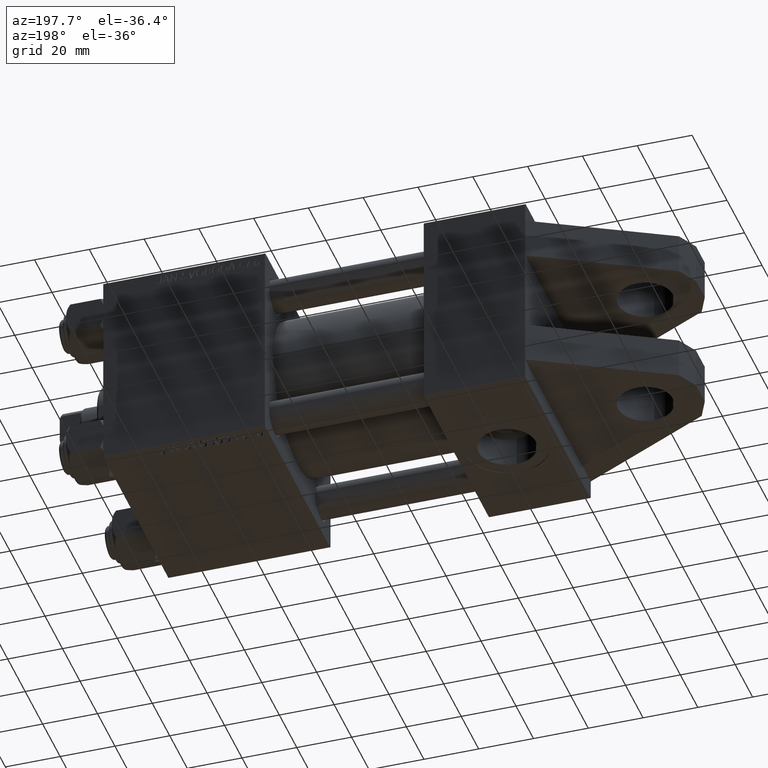
[diagram: clean part render]
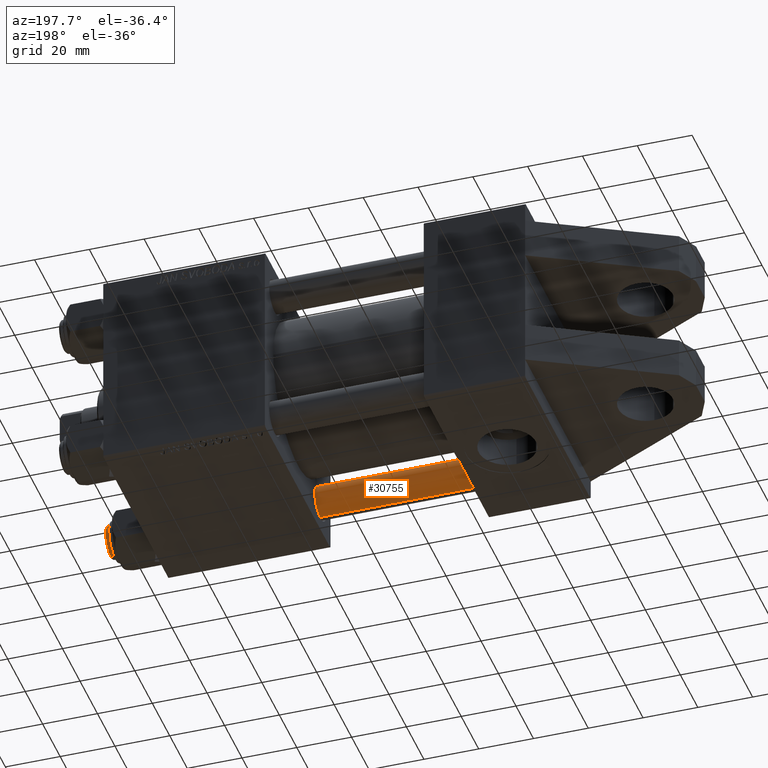
[diagram: same view with one face highlighted and labeled with its STEP entity id]
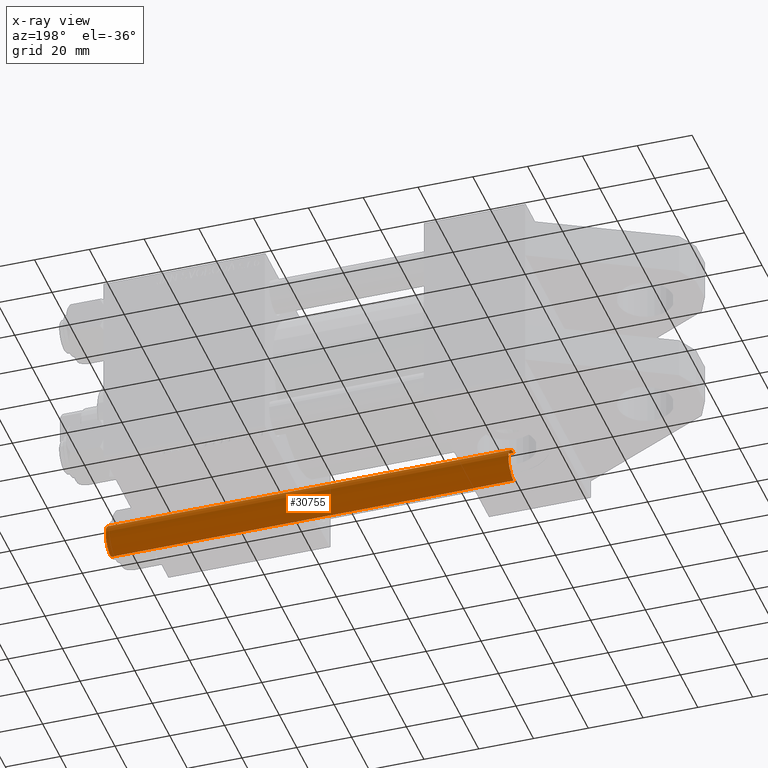
[diagram: x-ray of the same camera — body ghosted, the highlighted face saturated]
A machine part, auxiliary view. The second image highlights one B-rep face of the part: STEP entity #30755.
The next image is the same camera in x-ray: the body ghosted, the highlighted face saturated — about 0% of this face is hidden behind the body in this view.
In plain terms, the highlighted cylindrical surface (edge-blend (fillet) strip) has radius 6 mm, axis along (-1, -0, 0).
Its self-contained STEP definition (entity closure, byte-faithful):
#3296 = ORIENTED_EDGE ( 'NONE', *, *, #14106, .T. ) ;
#5097 = DIRECTION ( 'NONE',  ( -0.000000000000000000, -0.000000000000000000, 1.000000000000000000 ) ) ;
#7376 = VECTOR ( 'NONE', #28145, 1000.000000000000000 ) ;
#7771 = ORIENTED_EDGE ( 'NONE', *, *, #33238, .F. ) ;
#9310 = LINE ( 'NONE', #24129, #7376 ) ;
#10654 = VERTEX_POINT ( 'NONE', #35008 ) ;
#10751 = EDGE_LOOP ( 'NONE', ( #7771, #3296, #16037, #15051 ) ) ;
#10938 = CARTESIAN_POINT ( 'NONE',  ( -6.000000000000000888, 0.000000000000000000, 0.5000000000000281997 ) ) ;
#11531 = VERTEX_POINT ( 'NONE', #27467 ) ;
#13836 = CARTESIAN_POINT ( 'NONE',  ( -6.000000000000000888, 0.000000000000000000, 148.0000000000000000 ) ) ;
#14106 = EDGE_CURVE ( 'NONE', #36451, #11531, #38142, .T. ) ;
#15051 = ORIENTED_EDGE ( 'NONE', *, *, #32104, .T. ) ;
#15567 = CYLINDRICAL_SURFACE ( 'NONE', #35458, 6.000000000000000888 ) ;
#16037 = ORIENTED_EDGE ( 'NONE', *, *, #48278, .T. ) ;
#16410 = CARTESIAN_POINT ( 'NONE',  ( 0.000000000000000000, 0.000000000000000000, 147.5000000000000000 ) ) ;
#16645 = DIRECTION ( 'NONE',  ( 1.000000000000000000, 0.000000000000000000, 0.000000000000000000 ) ) ;
#20899 = LINE ( 'NONE', #13836, #22969 ) ;
#21390 = DIRECTION ( 'NONE',  ( -0.000000000000000000, -0.000000000000000000, -1.000000000000000000 ) ) ;
#22969 = VECTOR ( 'NONE', #21390, 1000.000000000000000 ) ;
#23108 = CARTESIAN_POINT ( 'NONE',  ( 0.000000000000000000, 0.000000000000000000, 148.0000000000000000 ) ) ;
#24129 = CARTESIAN_POINT ( 'NONE',  ( 6.000000000000000888, 7.347880794884120722E-16, 148.0000000000000000 ) ) ;
#24939 = DIRECTION ( 'NONE',  ( 0.000000000000000000, 0.000000000000000000, -1.000000000000000000 ) ) ;
#26589 = AXIS2_PLACEMENT_3D ( 'NONE', #39511, #5097, #16645 ) ;
#27467 = CARTESIAN_POINT ( 'NONE',  ( -6.000000000000000888, 0.000000000000000000, 147.5000000000000000 ) ) ;
#28145 = DIRECTION ( 'NONE',  ( -0.000000000000000000, -0.000000000000000000, -1.000000000000000000 ) ) ;
#28720 = DIRECTION ( 'NONE',  ( 1.000000000000000000, 0.000000000000000000, 0.000000000000000000 ) ) ;
#30755 = ADVANCED_FACE ( 'NONE', ( #42222 ), #15567, .T. ) ;
#31364 = VERTEX_POINT ( 'NONE', #10938 ) ;
#32104 = EDGE_CURVE ( 'NONE', #31364, #10654, #40231, .T. ) ;
#33238 = EDGE_CURVE ( 'NONE', #36451, #10654, #9310, .T. ) ;
#34915 = DIRECTION ( 'NONE',  ( -1.000000000000000000, 0.000000000000000000, 0.000000000000000000 ) ) ;
#35008 = CARTESIAN_POINT ( 'NONE',  ( 6.000000000000000888, 7.347880794884120722E-16, 0.5000000000000281997 ) ) ;
#35458 = AXIS2_PLACEMENT_3D ( 'NONE', #23108, #38448, #34915 ) ;
#36451 = VERTEX_POINT ( 'NONE', #43837 ) ;
#38142 = CIRCLE ( 'NONE', #39754, 6.000000000000000888 ) ;
#38448 = DIRECTION ( 'NONE',  ( -0.000000000000000000, -0.000000000000000000, -1.000000000000000000 ) ) ;
#39511 = CARTESIAN_POINT ( 'NONE',  ( 0.000000000000000000, 0.000000000000000000, 0.5000000000000281997 ) ) ;
#39754 = AXIS2_PLACEMENT_3D ( 'NONE', #16410, #24939, #28720 ) ;
#40231 = CIRCLE ( 'NONE', #26589, 6.000000000000000888 ) ;
#42222 = FACE_OUTER_BOUND ( 'NONE', #10751, .T. ) ;
#43837 = CARTESIAN_POINT ( 'NONE',  ( 6.000000000000000888, 7.347880794884120722E-16, 147.5000000000000000 ) ) ;
#48278 = EDGE_CURVE ( 'NONE', #11531, #31364, #20899, .T. ) ;